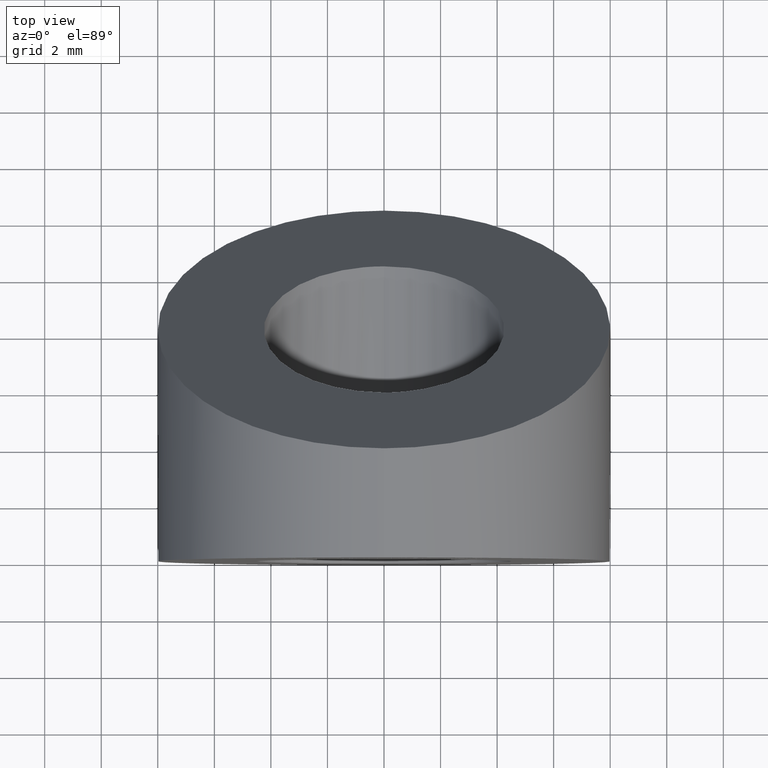
[diagram: clean part render]
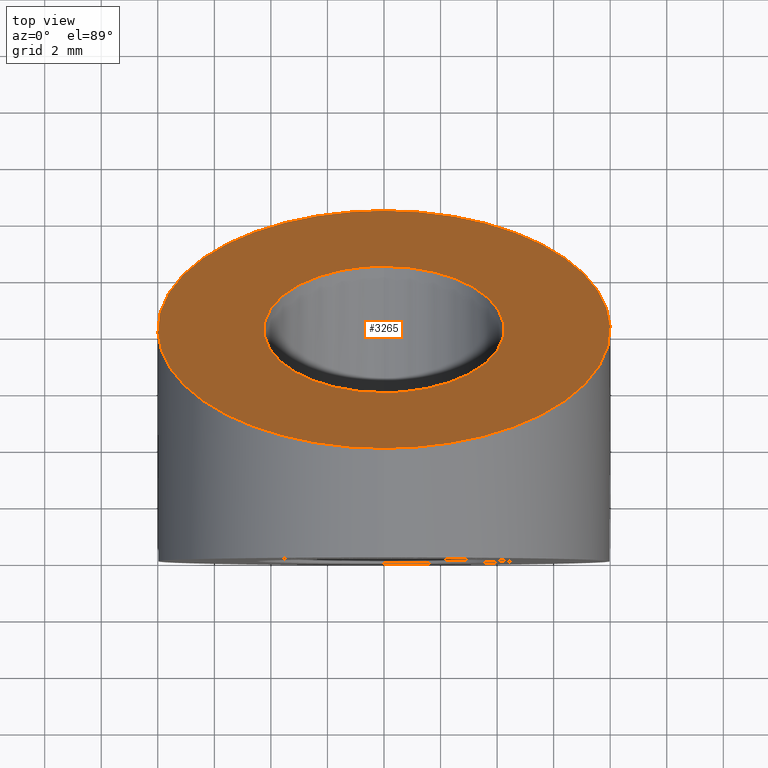
[diagram: same view with one face highlighted and labeled with its STEP entity id]
A machine part, top view. The second image highlights one B-rep face of the part: STEP entity #3265.
In plain terms, the highlighted planar face has unit normal (0, -0.8789, -0.4771).
Its self-contained STEP definition (entity closure, byte-faithful):
#54 = CARTESIAN_POINT ( 'NONE',  ( 15.99999999999999800, 3.857142857142853200, 8.000000000000001800 ) ) ;
#1181 = ORIENTED_EDGE ( 'NONE', *, *, #2400, .T. ) ;
#1648 = CARTESIAN_POINT ( 'NONE',  ( 5.204748896376250700E-016, 5.892857142857140600, 4.250000000000000000 ) ) ;
#1802 = VERTEX_POINT ( 'NONE', #12508 ) ;
#1832 = AXIS2_PLACEMENT_3D ( 'NONE', #9427, #3978, #6674 ) ;
#1869 = PLANE ( 'NONE',  #1832 ) ;
#2091 = CARTESIAN_POINT ( 'NONE',  ( 5.204748896376250700E-016, 5.892857142857140600, 4.250000000000000000 ) ) ;
#2244 = VERTEX_POINT ( 'NONE', #3005 ) ;
#2400 = EDGE_CURVE ( 'NONE', #12603, #10571, #5802, .T. ) ;
#2490 = EDGE_CURVE ( 'NONE', #1802, #2244, #13065, .T. ) ;
#3005 = CARTESIAN_POINT ( 'NONE',  ( 0.0000000000000000000, 12.54285714285714400, -8.000000000000000000 ) ) ;
#3253 = CARTESIAN_POINT ( 'NONE',  ( -15.99999999999999800, 3.857142857142853200, 8.000000000000001800 ) ) ;
#3265 = ADVANCED_FACE ( 'NONE', ( #13824, #14159 ), #1869, .F. ) ;
#3322 = CARTESIAN_POINT ( 'NONE',  ( 0.0000000000000000000, 10.50714285714285800, -4.250000000000000000 ) ) ;
#3506 = ORIENTED_EDGE ( 'NONE', *, *, #9229, .T. ) ;
#3978 = DIRECTION ( 'NONE',  ( 0.0000000000000000000, -0.8788534316656944100, -0.4770918629042343300 ) ) ;
#5514 = CARTESIAN_POINT ( 'NONE',  ( 9.797174393178825700E-016, 3.857142857142854100, 8.000000000000000000 ) ) ;
#5802 =( BOUNDED_CURVE ( )  B_SPLINE_CURVE ( 3, ( #11354, #10287, #12505, #1648 ),
 .UNSPECIFIED., .F., .F. ) 
 B_SPLINE_CURVE_WITH_KNOTS ( ( 4, 4 ),
 ( 3.141592653589793100, 6.283185307179586200 ),
 .UNSPECIFIED. ) 
 CURVE ( )  GEOMETRIC_REPRESENTATION_ITEM ( )  RATIONAL_B_SPLINE_CURVE ( ( 1.000000000000000000, 0.3333333333333333700, 0.3333333333333333700, 1.000000000000000000 ) ) 
 REPRESENTATION_ITEM ( '' )  );
#6418 = CARTESIAN_POINT ( 'NONE',  ( -8.499999999999998200, 10.50714285714285800, -4.250000000000000000 ) ) ;
#6674 = DIRECTION ( 'NONE',  ( 0.0000000000000000000, 0.4770918629042342800, -0.8788534316656943000 ) ) ;
#7023 =( BOUNDED_CURVE ( )  B_SPLINE_CURVE ( 3, ( #2091, #8690, #6418, #7471 ),
 .UNSPECIFIED., .F., .F. ) 
 B_SPLINE_CURVE_WITH_KNOTS ( ( 4, 4 ),
 ( 0.0000000000000000000, 3.141592653589793100 ),
 .UNSPECIFIED. ) 
 CURVE ( )  GEOMETRIC_REPRESENTATION_ITEM ( )  RATIONAL_B_SPLINE_CURVE ( ( 1.000000000000000000, 0.3333333333333333700, 0.3333333333333333700, 1.000000000000000000 ) ) 
 REPRESENTATION_ITEM ( '' )  );
#7471 = CARTESIAN_POINT ( 'NONE',  ( 0.0000000000000000000, 10.50714285714285800, -4.250000000000000000 ) ) ;
#7617 = CARTESIAN_POINT ( 'NONE',  ( 15.99999999999999800, 12.54285714285715000, -8.000000000000003600 ) ) ;
#8388 = ORIENTED_EDGE ( 'NONE', *, *, #8828, .F. ) ;
#8690 = CARTESIAN_POINT ( 'NONE',  ( -8.499999999999998200, 5.892857142857139700, 4.250000000000000900 ) ) ;
#8828 = EDGE_CURVE ( 'NONE', #2244, #1802, #11423, .T. ) ;
#9229 = EDGE_CURVE ( 'NONE', #10571, #12603, #7023, .T. ) ;
#9411 = ORIENTED_EDGE ( 'NONE', *, *, #2490, .F. ) ;
#9427 = CARTESIAN_POINT ( 'NONE',  ( -8.000000000000000000, 3.857142857142854100, 8.000000000000000000 ) ) ;
#10185 = EDGE_LOOP ( 'NONE', ( #1181, #3506 ) ) ;
#10287 = CARTESIAN_POINT ( 'NONE',  ( 8.499999999999998200, 10.50714285714285800, -4.250000000000001800 ) ) ;
#10571 = VERTEX_POINT ( 'NONE', #11902 ) ;
#10943 = CARTESIAN_POINT ( 'NONE',  ( 9.797174393178825700E-016, 3.857142857142854100, 8.000000000000000000 ) ) ;
#11009 = CARTESIAN_POINT ( 'NONE',  ( 0.0000000000000000000, 12.54285714285714400, -8.000000000000000000 ) ) ;
#11354 = CARTESIAN_POINT ( 'NONE',  ( 0.0000000000000000000, 10.50714285714285800, -4.250000000000000000 ) ) ;
#11423 =( BOUNDED_CURVE ( )  B_SPLINE_CURVE ( 3, ( #11009, #7617, #54, #5514 ),
 .UNSPECIFIED., .F., .F. ) 
 B_SPLINE_CURVE_WITH_KNOTS ( ( 4, 4 ),
 ( 3.141592653589793100, 6.283185307179586200 ),
 .UNSPECIFIED. ) 
 CURVE ( )  GEOMETRIC_REPRESENTATION_ITEM ( )  RATIONAL_B_SPLINE_CURVE ( ( 1.000000000000000000, 0.3333333333333333700, 0.3333333333333333700, 1.000000000000000000 ) ) 
 REPRESENTATION_ITEM ( '' )  );
#11902 = CARTESIAN_POINT ( 'NONE',  ( 5.204748896376250700E-016, 5.892857142857140600, 4.250000000000000000 ) ) ;
#12039 = CARTESIAN_POINT ( 'NONE',  ( -15.99999999999999800, 12.54285714285714400, -8.000000000000000000 ) ) ;
#12436 = EDGE_LOOP ( 'NONE', ( #8388, #9411 ) ) ;
#12505 = CARTESIAN_POINT ( 'NONE',  ( 8.499999999999998200, 5.892857142857139700, 4.250000000000000900 ) ) ;
#12508 = CARTESIAN_POINT ( 'NONE',  ( 9.797174393178825700E-016, 3.857142857142854100, 8.000000000000000000 ) ) ;
#12603 = VERTEX_POINT ( 'NONE', #3322 ) ;
#13065 =( BOUNDED_CURVE ( )  B_SPLINE_CURVE ( 3, ( #10943, #3253, #12039, #14161 ),
 .UNSPECIFIED., .F., .F. ) 
 B_SPLINE_CURVE_WITH_KNOTS ( ( 4, 4 ),
 ( 0.0000000000000000000, 3.141592653589793100 ),
 .UNSPECIFIED. ) 
 CURVE ( )  GEOMETRIC_REPRESENTATION_ITEM ( )  RATIONAL_B_SPLINE_CURVE ( ( 1.000000000000000000, 0.3333333333333333700, 0.3333333333333333700, 1.000000000000000000 ) ) 
 REPRESENTATION_ITEM ( '' )  );
#13824 = FACE_BOUND ( 'NONE', #10185, .T. ) ;
#14159 = FACE_OUTER_BOUND ( 'NONE', #12436, .T. ) ;
#14161 = CARTESIAN_POINT ( 'NONE',  ( 0.0000000000000000000, 12.54285714285714400, -8.000000000000000000 ) ) ;